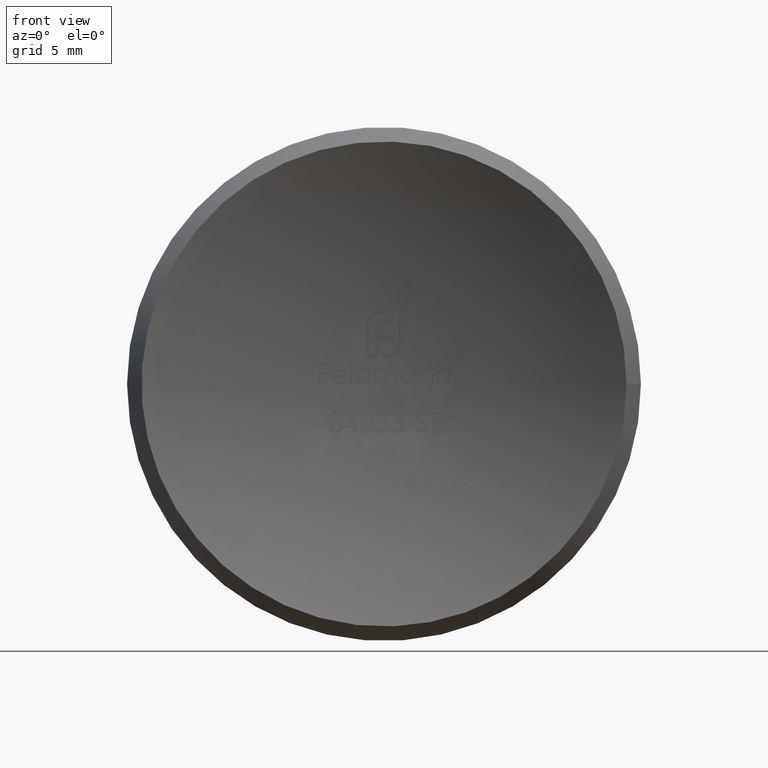
[diagram: clean part render]
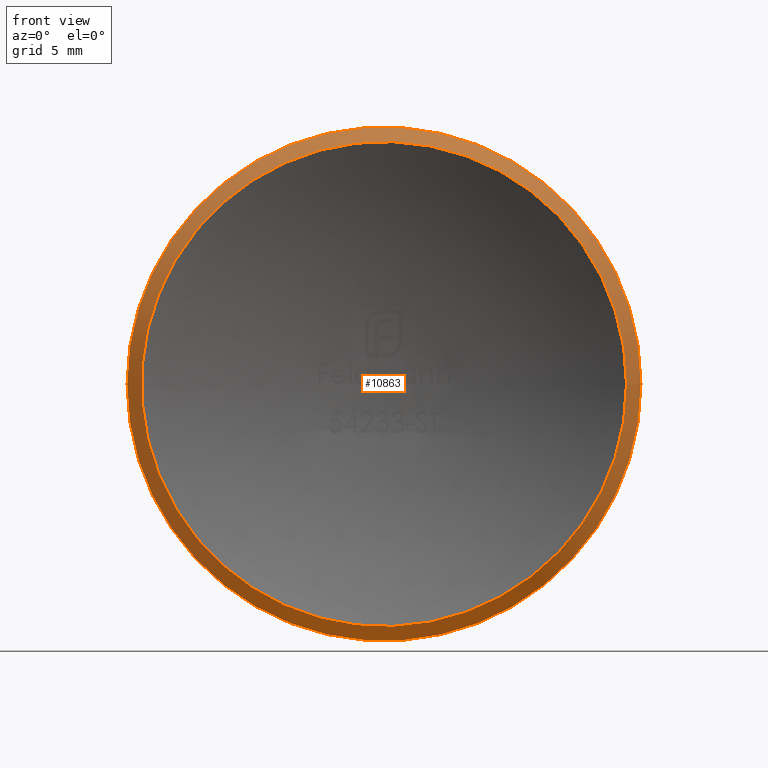
[diagram: same view with one face highlighted and labeled with its STEP entity id]
A machine part, front view. The second image highlights one B-rep face of the part: STEP entity #10863.
In plain terms, the highlighted conical surface has half-angle 28.236 deg.
Its self-contained STEP definition (entity closure, byte-faithful):
#140 = EDGE_LOOP ( 'NONE', ( #2144 ) ) ;
#157 = EDGE_CURVE ( 'NONE', #1695, #1695, #7975, .T. ) ;
#346 = EDGE_CURVE ( 'NONE', #1239, #1239, #6716, .T. ) ;
#1239 = VERTEX_POINT ( 'NONE', #4395 ) ;
#1685 = AXIS2_PLACEMENT_3D ( 'NONE', #12018, #10011, #11029 ) ;
#1695 = VERTEX_POINT ( 'NONE', #11844 ) ;
#2144 = ORIENTED_EDGE ( 'NONE', *, *, #157, .F. ) ;
#3084 = DIRECTION ( 'NONE',  ( 1.029204846092834212E-15, -1.000000000000000000, -0.000000000000000000 ) ) ;
#3207 = FACE_OUTER_BOUND ( 'NONE', #11845, .T. ) ;
#3854 = DIRECTION ( 'NONE',  ( 1.029204846092834212E-15, -1.000000000000000000, -0.000000000000000000 ) ) ;
#4395 = CARTESIAN_POINT ( 'NONE',  ( 16.84999999999999787, 1.762020786474822742, 0.000000000000000000 ) ) ;
#6716 = CIRCLE ( 'NONE', #11465, 16.84999999999999432 ) ;
#7403 = DIRECTION ( 'NONE',  ( 1.000000000000000000, 1.029509481291874052E-15, 0.000000000000000000 ) ) ;
#7837 = DIRECTION ( 'NONE',  ( 1.000000000000000000, 1.029204846092834212E-15, 0.000000000000000000 ) ) ;
#7975 = CIRCLE ( 'NONE', #12985, 15.90380617840177635 ) ;
#9667 = CONICAL_SURFACE ( 'NONE', #1685, 15.90380617840177635, 0.4928026545687019810 ) ;
#9984 = FACE_BOUND ( 'NONE', #140, .T. ) ;
#10011 = DIRECTION ( 'NONE',  ( -1.029204846092834212E-15, 1.000000000000000000, 0.000000000000000000 ) ) ;
#10863 = ADVANCED_FACE ( 'NONE', ( #3207, #9984 ), #9667, .T. ) ;
#11029 = DIRECTION ( 'NONE',  ( -1.000000000000000000, -1.029204846092834212E-15, 0.000000000000000000 ) ) ;
#11155 = CARTESIAN_POINT ( 'NONE',  ( 4.361748744289077522E-15, 1.762020786474805423, 0.000000000000000000 ) ) ;
#11465 = AXIS2_PLACEMENT_3D ( 'NONE', #11155, #3084, #7403 ) ;
#11834 = CARTESIAN_POINT ( 'NONE',  ( 6.175229076645265788E-15, -9.540979117872439019E-15, 0.000000000000000000 ) ) ;
#11844 = CARTESIAN_POINT ( 'NONE',  ( 15.90380617840178168, 6.827295272259827342E-15, 0.000000000000000000 ) ) ;
#11845 = EDGE_LOOP ( 'NONE', ( #12751 ) ) ;
#12018 = CARTESIAN_POINT ( 'NONE',  ( 6.175229076645265788E-15, -9.540979117872439019E-15, 0.000000000000000000 ) ) ;
#12751 = ORIENTED_EDGE ( 'NONE', *, *, #346, .T. ) ;
#12985 = AXIS2_PLACEMENT_3D ( 'NONE', #11834, #3854, #7837 ) ;